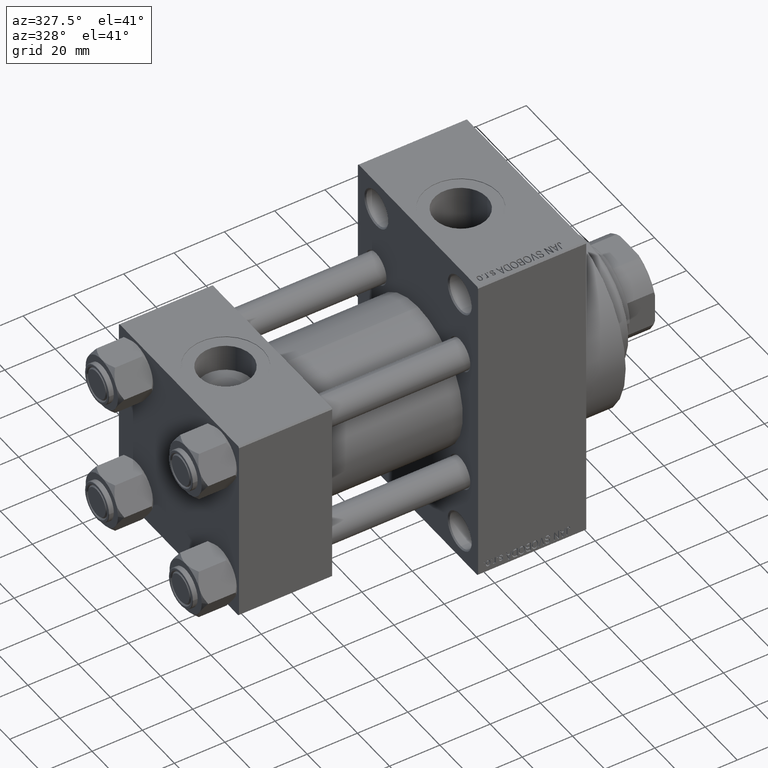
[diagram: clean part render]
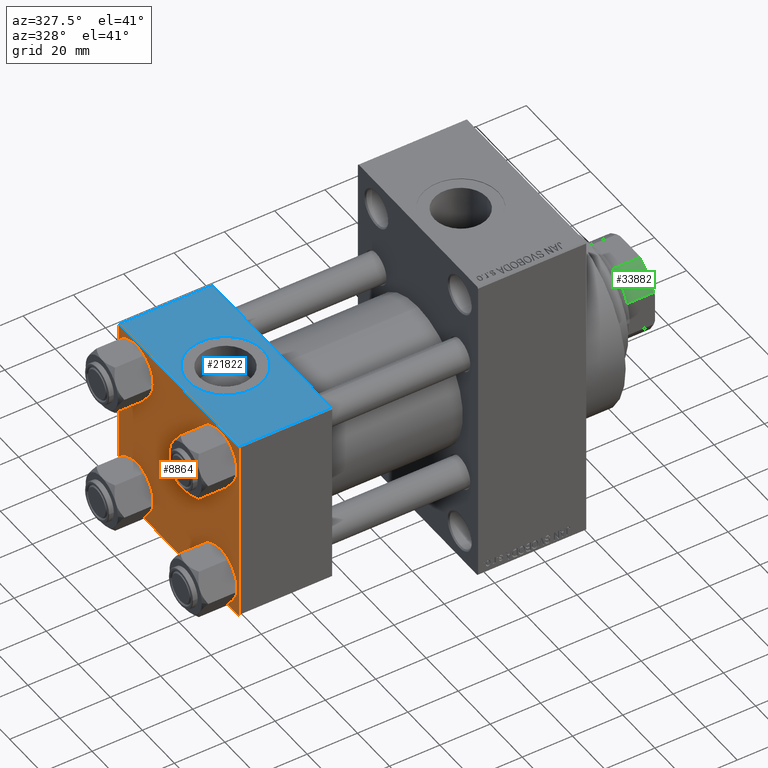
[diagram: same view with three faces highlighted in distinct colors, each labeled with its STEP entity id]
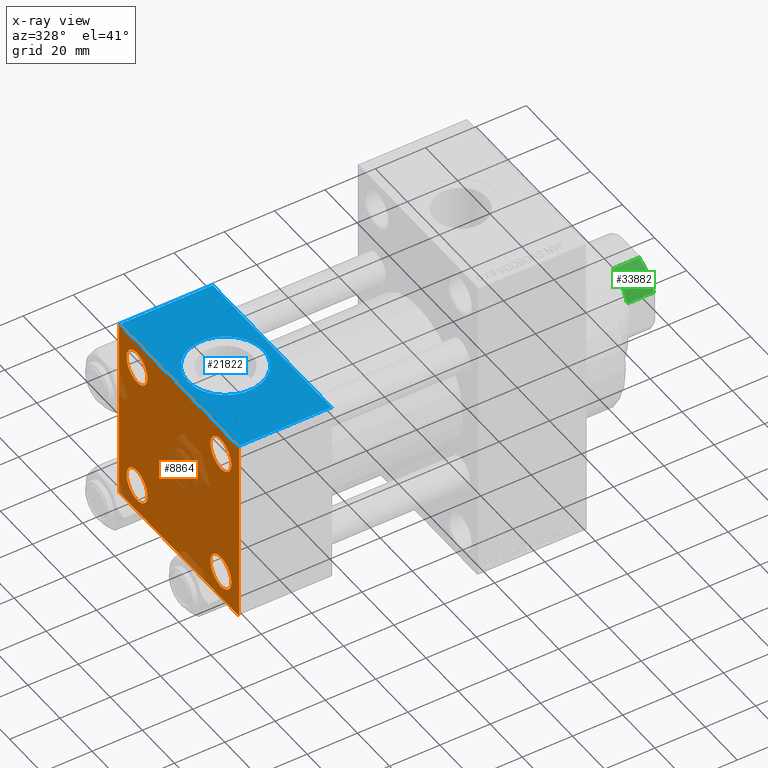
[diagram: x-ray of the same camera — body ghosted, the three highlighted faces saturated]
A machine part, auxiliary view with three faces highlighted in distinct colors.
The next image is the same camera in x-ray (body ghosted, the three faces saturated) — at least one of them is partly hidden behind the body in this view.
Their STEP definitions:

[orange] entity #8864 — the highlighted planar face has unit normal (-1, 0, 0).
#709 = LINE ( 'NONE', #45149, #17360 ) ;
#785 = VERTEX_POINT ( 'NONE', #18199 ) ;
#1484 = CIRCLE ( 'NONE', #5345, 6.500000000000023093 ) ;
#1525 = EDGE_CURVE ( 'NONE', #11222, #17447, #709, .T. ) ;
#1837 = DIRECTION ( 'NONE',  ( 1.000000000000000000, -0.000000000000000000, 0.000000000000000000 ) ) ;
#2210 = CARTESIAN_POINT ( 'NONE',  ( 0.000000000000000000, -37.50000000000000711, 36.99999999999999289 ) ) ;
#2714 = CARTESIAN_POINT ( 'NONE',  ( 0.000000000000000000, 0.000000000000000000, 0.000000000000000000 ) ) ;
#2852 = EDGE_LOOP ( 'NONE', ( #30774, #11164 ) ) ;
#3331 = DIRECTION ( 'NONE',  ( 0.000000000000000000, 0.7071067811865474617, -0.7071067811865474617 ) ) ;
#3802 = CARTESIAN_POINT ( 'NONE',  ( 0.000000000000000000, -26.14999999999999147, -32.65000000000002700 ) ) ;
#4477 = DIRECTION ( 'NONE',  ( 1.000000000000000000, -0.000000000000000000, 0.000000000000000000 ) ) ;
#4916 = CIRCLE ( 'NONE', #32488, 6.500000000000015987 ) ;
#5211 = AXIS2_PLACEMENT_3D ( 'NONE', #7226, #43727, #7693 ) ;
#5222 = DIRECTION ( 'NONE',  ( 0.000000000000000000, 0.000000000000000000, 1.000000000000000000 ) ) ;
#5345 = AXIS2_PLACEMENT_3D ( 'NONE', #9900, #24524, #39173 ) ;
#5518 = LINE ( 'NONE', #16098, #5759 ) ;
#5546 = EDGE_CURVE ( 'NONE', #39640, #23417, #9514, .T. ) ;
#5759 = VECTOR ( 'NONE', #41538, 1000.000000000000114 ) ;
#5796 = EDGE_CURVE ( 'NONE', #13969, #39763, #5924, .T. ) ;
#5924 = CIRCLE ( 'NONE', #7449, 6.500000000000023093 ) ;
#6107 = EDGE_LOOP ( 'NONE', ( #44374, #10588 ) ) ;
#6208 = CIRCLE ( 'NONE', #39175, 6.500000000000023093 ) ;
#6320 = PLANE ( 'NONE',  #10585 ) ;
#7017 = CARTESIAN_POINT ( 'NONE',  ( 0.000000000000000000, 37.49999999999999289, -37.50000000000000000 ) ) ;
#7226 = CARTESIAN_POINT ( 'NONE',  ( 0.000000000000000000, -26.14999999999999147, -26.15000000000000924 ) ) ;
#7449 = AXIS2_PLACEMENT_3D ( 'NONE', #42759, #10094, #24963 ) ;
#7569 = EDGE_CURVE ( 'NONE', #34756, #14302, #46590, .T. ) ;
#7611 = EDGE_LOOP ( 'NONE', ( #28040, #29580 ) ) ;
#7679 = EDGE_CURVE ( 'NONE', #16882, #33552, #12279, .T. ) ;
#7693 = DIRECTION ( 'NONE',  ( 0.000000000000000000, 0.000000000000000000, 1.000000000000000000 ) ) ;
#8312 = EDGE_CURVE ( 'NONE', #10881, #26910, #31292, .T. ) ;
#8856 = VECTOR ( 'NONE', #3331, 1000.000000000000114 ) ;
#8864 = ADVANCED_FACE ( 'NONE', ( #32958, #25031, #18086, #17374, #14728 ), #6320, .T. ) ;
#9473 = VECTOR ( 'NONE', #24946, 1000.000000000000000 ) ;
#9514 = LINE ( 'NONE', #24143, #35007 ) ;
#9900 = CARTESIAN_POINT ( 'NONE',  ( 0.000000000000000000, 26.14999999999999858, 26.15000000000000213 ) ) ;
#10094 = DIRECTION ( 'NONE',  ( 1.000000000000000000, -0.000000000000000000, 0.000000000000000000 ) ) ;
#10585 = AXIS2_PLACEMENT_3D ( 'NONE', #2714, #39691, #21431 ) ;
#10588 = ORIENTED_EDGE ( 'NONE', *, *, #18924, .T. ) ;
#10757 = ORIENTED_EDGE ( 'NONE', *, *, #7679, .F. ) ;
#10881 = VERTEX_POINT ( 'NONE', #29624 ) ;
#11051 = EDGE_CURVE ( 'NONE', #31338, #785, #1484, .T. ) ;
#11164 = ORIENTED_EDGE ( 'NONE', *, *, #13367, .T. ) ;
#11222 = VERTEX_POINT ( 'NONE', #19467 ) ;
#11375 = AXIS2_PLACEMENT_3D ( 'NONE', #31516, #46155, #13285 ) ;
#12279 = LINE ( 'NONE', #18984, #25088 ) ;
#13285 = DIRECTION ( 'NONE',  ( 0.000000000000000000, 0.000000000000000000, 1.000000000000000000 ) ) ;
#13367 = EDGE_CURVE ( 'NONE', #26910, #10881, #37603, .T. ) ;
#13969 = VERTEX_POINT ( 'NONE', #18502 ) ;
#14302 = VERTEX_POINT ( 'NONE', #40765 ) ;
#14661 = VERTEX_POINT ( 'NONE', #22806 ) ;
#14728 = FACE_OUTER_BOUND ( 'NONE', #31901, .T. ) ;
#14781 = CARTESIAN_POINT ( 'NONE',  ( 0.000000000000000000, -37.00000000000000711, 37.49999999999999289 ) ) ;
#16098 = CARTESIAN_POINT ( 'NONE',  ( -0.000000000000000000, -37.25000000000000000, 37.25000000000000000 ) ) ;
#16504 = CARTESIAN_POINT ( 'NONE',  ( 0.000000000000000000, 26.14999999999999858, 26.15000000000000213 ) ) ;
#16862 = DIRECTION ( 'NONE',  ( 0.000000000000000000, 0.000000000000000000, -1.000000000000000000 ) ) ;
#16882 = VERTEX_POINT ( 'NONE', #2210 ) ;
#17179 = VECTOR ( 'NONE', #16862, 1000.000000000000000 ) ;
#17360 = VECTOR ( 'NONE', #34563, 1000.000000000000000 ) ;
#17374 = FACE_BOUND ( 'NONE', #6107, .T. ) ;
#17447 = VERTEX_POINT ( 'NONE', #14781 ) ;
#18065 = ORIENTED_EDGE ( 'NONE', *, *, #24597, .T. ) ;
#18086 = FACE_BOUND ( 'NONE', #2852, .T. ) ;
#18199 = CARTESIAN_POINT ( 'NONE',  ( 0.000000000000000000, 26.14999999999999858, 19.64999999999998437 ) ) ;
#18502 = CARTESIAN_POINT ( 'NONE',  ( 0.000000000000000000, -26.14999999999999147, 19.64999999999999147 ) ) ;
#18924 = EDGE_CURVE ( 'NONE', #785, #31338, #6208, .T. ) ;
#18962 = CARTESIAN_POINT ( 'NONE',  ( 0.000000000000000000, 26.14999999999999858, 32.65000000000002700 ) ) ;
#18984 = CARTESIAN_POINT ( 'NONE',  ( 0.000000000000000000, -37.50000000000000711, 37.49999999999999289 ) ) ;
#19467 = CARTESIAN_POINT ( 'NONE',  ( 0.000000000000000000, 36.99999999999999289, 37.50000000000000000 ) ) ;
#19981 = LINE ( 'NONE', #42545, #17179 ) ;
#20809 = EDGE_LOOP ( 'NONE', ( #30312, #21731 ) ) ;
#21431 = DIRECTION ( 'NONE',  ( -0.000000000000000000, 0.000000000000000000, 1.000000000000000000 ) ) ;
#21654 = ORIENTED_EDGE ( 'NONE', *, *, #44254, .T. ) ;
#21731 = ORIENTED_EDGE ( 'NONE', *, *, #7569, .T. ) ;
#22471 = CARTESIAN_POINT ( 'NONE',  ( 0.000000000000000000, -26.14999999999999147, -26.15000000000000924 ) ) ;
#22806 = CARTESIAN_POINT ( 'NONE',  ( 0.000000000000000000, -37.00000000000002132, -37.50000000000000711 ) ) ;
#23417 = VERTEX_POINT ( 'NONE', #25768 ) ;
#24143 = CARTESIAN_POINT ( 'NONE',  ( 0.000000000000000000, 37.24999999999998579, -37.24999999999998579 ) ) ;
#24524 = DIRECTION ( 'NONE',  ( 1.000000000000000000, -0.000000000000000000, 0.000000000000000000 ) ) ;
#24597 = EDGE_CURVE ( 'NONE', #14661, #33552, #24707, .T. ) ;
#24707 = LINE ( 'NONE', #25184, #9473 ) ;
#24942 = LINE ( 'NONE', #36688, #8856 ) ;
#24946 = DIRECTION ( 'NONE',  ( 0.000000000000000000, -0.7071067811865524577, 0.7071067811865426878 ) ) ;
#24963 = DIRECTION ( 'NONE',  ( 0.000000000000000000, 0.000000000000000000, 1.000000000000000000 ) ) ;
#25031 = FACE_BOUND ( 'NONE', #20809, .T. ) ;
#25088 = VECTOR ( 'NONE', #45396, 1000.000000000000000 ) ;
#25111 = EDGE_CURVE ( 'NONE', #14302, #34756, #4916, .T. ) ;
#25184 = CARTESIAN_POINT ( 'NONE',  ( 0.000000000000000000, -37.24999999999975842, -37.25000000000027001 ) ) ;
#25768 = CARTESIAN_POINT ( 'NONE',  ( 0.000000000000000000, 36.99999999999997868, -37.50000000000000000 ) ) ;
#26328 = EDGE_CURVE ( 'NONE', #40887, #39640, #19981, .T. ) ;
#26539 = CARTESIAN_POINT ( 'NONE',  ( 0.000000000000000000, 26.14999999999999858, -32.65000000000001990 ) ) ;
#26910 = VERTEX_POINT ( 'NONE', #26539 ) ;
#27978 = DIRECTION ( 'NONE',  ( -0.000000000000000000, -0.7071067811865474617, -0.7071067811865474617 ) ) ;
#28040 = ORIENTED_EDGE ( 'NONE', *, *, #45441, .T. ) ;
#28807 = AXIS2_PLACEMENT_3D ( 'NONE', #34589, #38900, #35051 ) ;
#28867 = LINE ( 'NONE', #7017, #40910 ) ;
#29580 = ORIENTED_EDGE ( 'NONE', *, *, #5796, .T. ) ;
#29624 = CARTESIAN_POINT ( 'NONE',  ( 0.000000000000000000, 26.14999999999999858, -19.64999999999998792 ) ) ;
#30312 = ORIENTED_EDGE ( 'NONE', *, *, #25111, .T. ) ;
#30774 = ORIENTED_EDGE ( 'NONE', *, *, #8312, .T. ) ;
#31292 = CIRCLE ( 'NONE', #11375, 6.500000000000015987 ) ;
#31338 = VERTEX_POINT ( 'NONE', #18962 ) ;
#31356 = ORIENTED_EDGE ( 'NONE', *, *, #1525, .F. ) ;
#31516 = CARTESIAN_POINT ( 'NONE',  ( 0.000000000000000000, 26.14999999999999858, -26.15000000000000213 ) ) ;
#31901 = EDGE_LOOP ( 'NONE', ( #33084, #46869, #38374, #18065, #10757, #21654, #31356, #37152 ) ) ;
#32488 = AXIS2_PLACEMENT_3D ( 'NONE', #22471, #4477, #37358 ) ;
#32958 = FACE_BOUND ( 'NONE', #7611, .T. ) ;
#33084 = ORIENTED_EDGE ( 'NONE', *, *, #26328, .T. ) ;
#33552 = VERTEX_POINT ( 'NONE', #34339 ) ;
#34339 = CARTESIAN_POINT ( 'NONE',  ( 0.000000000000000000, -37.50000000000000000, -37.00000000000003553 ) ) ;
#34563 = DIRECTION ( 'NONE',  ( 0.000000000000000000, -1.000000000000000000, -9.251858538542971581E-17 ) ) ;
#34589 = CARTESIAN_POINT ( 'NONE',  ( 0.000000000000000000, -26.14999999999999147, 26.15000000000000924 ) ) ;
#34756 = VERTEX_POINT ( 'NONE', #3802 ) ;
#35007 = VECTOR ( 'NONE', #27978, 1000.000000000000114 ) ;
#35051 = DIRECTION ( 'NONE',  ( 0.000000000000000000, 0.000000000000000000, 1.000000000000000000 ) ) ;
#36614 = CARTESIAN_POINT ( 'NONE',  ( 0.000000000000000000, 26.14999999999999858, -26.15000000000000213 ) ) ;
#36628 = EDGE_CURVE ( 'NONE', #23417, #14661, #28867, .T. ) ;
#36688 = CARTESIAN_POINT ( 'NONE',  ( 0.000000000000000000, 37.24999999999999289, 37.24999999999999289 ) ) ;
#37152 = ORIENTED_EDGE ( 'NONE', *, *, #40856, .T. ) ;
#37358 = DIRECTION ( 'NONE',  ( 0.000000000000000000, 0.000000000000000000, 1.000000000000000000 ) ) ;
#37603 = CIRCLE ( 'NONE', #39908, 6.500000000000015987 ) ;
#38138 = CARTESIAN_POINT ( 'NONE',  ( 0.000000000000000000, 37.49999999999999289, 37.00000000000000000 ) ) ;
#38374 = ORIENTED_EDGE ( 'NONE', *, *, #36628, .T. ) ;
#38652 = CARTESIAN_POINT ( 'NONE',  ( 0.000000000000000000, -26.14999999999999147, 32.65000000000003411 ) ) ;
#38900 = DIRECTION ( 'NONE',  ( 1.000000000000000000, -0.000000000000000000, 0.000000000000000000 ) ) ;
#39173 = DIRECTION ( 'NONE',  ( 0.000000000000000000, 0.000000000000000000, 1.000000000000000000 ) ) ;
#39175 = AXIS2_PLACEMENT_3D ( 'NONE', #16504, #1837, #5222 ) ;
#39427 = DIRECTION ( 'NONE',  ( 0.000000000000000000, -1.000000000000000000, -9.251858538542972814E-17 ) ) ;
#39640 = VERTEX_POINT ( 'NONE', #41558 ) ;
#39691 = DIRECTION ( 'NONE',  ( -1.000000000000000000, 0.000000000000000000, -0.000000000000000000 ) ) ;
#39763 = VERTEX_POINT ( 'NONE', #38652 ) ;
#39908 = AXIS2_PLACEMENT_3D ( 'NONE', #36614, #44074, #40468 ) ;
#40287 = CIRCLE ( 'NONE', #28807, 6.500000000000023093 ) ;
#40468 = DIRECTION ( 'NONE',  ( 0.000000000000000000, 0.000000000000000000, 1.000000000000000000 ) ) ;
#40765 = CARTESIAN_POINT ( 'NONE',  ( 0.000000000000000000, -26.14999999999999147, -19.64999999999999503 ) ) ;
#40856 = EDGE_CURVE ( 'NONE', #11222, #40887, #24942, .T. ) ;
#40887 = VERTEX_POINT ( 'NONE', #38138 ) ;
#40910 = VECTOR ( 'NONE', #39427, 1000.000000000000000 ) ;
#41538 = DIRECTION ( 'NONE',  ( -0.000000000000000000, 0.7071067811865474617, 0.7071067811865474617 ) ) ;
#41558 = CARTESIAN_POINT ( 'NONE',  ( 0.000000000000000000, 37.49999999999999289, -36.99999999999998579 ) ) ;
#42545 = CARTESIAN_POINT ( 'NONE',  ( 0.000000000000000000, 37.49999999999999289, 37.50000000000000000 ) ) ;
#42759 = CARTESIAN_POINT ( 'NONE',  ( 0.000000000000000000, -26.14999999999999147, 26.15000000000000924 ) ) ;
#43727 = DIRECTION ( 'NONE',  ( 1.000000000000000000, -0.000000000000000000, 0.000000000000000000 ) ) ;
#44074 = DIRECTION ( 'NONE',  ( 1.000000000000000000, -0.000000000000000000, 0.000000000000000000 ) ) ;
#44254 = EDGE_CURVE ( 'NONE', #16882, #17447, #5518, .T. ) ;
#44374 = ORIENTED_EDGE ( 'NONE', *, *, #11051, .T. ) ;
#45149 = CARTESIAN_POINT ( 'NONE',  ( 0.000000000000000000, 37.49999999999999289, 37.50000000000000000 ) ) ;
#45396 = DIRECTION ( 'NONE',  ( 0.000000000000000000, 9.251858538542971581E-17, -1.000000000000000000 ) ) ;
#45441 = EDGE_CURVE ( 'NONE', #39763, #13969, #40287, .T. ) ;
#46155 = DIRECTION ( 'NONE',  ( 1.000000000000000000, -0.000000000000000000, 0.000000000000000000 ) ) ;
#46590 = CIRCLE ( 'NONE', #5211, 6.500000000000015987 ) ;
#46869 = ORIENTED_EDGE ( 'NONE', *, *, #5546, .T. ) ;

[blue] entity #21822 — the highlighted planar face has unit normal (0, 0, -1).
#709 = LINE ( 'NONE', #45149, #17360 ) ;
#917 = CIRCLE ( 'NONE', #39263, 15.00000000000000355 ) ;
#1525 = EDGE_CURVE ( 'NONE', #11222, #17447, #709, .T. ) ;
#1905 = LINE ( 'NONE', #9590, #9335 ) ;
#3131 = DIRECTION ( 'NONE',  ( 0.000000000000000000, 0.000000000000000000, 1.000000000000000000 ) ) ;
#5509 = AXIS2_PLACEMENT_3D ( 'NONE', #13265, #3131, #24733 ) ;
#6171 = DIRECTION ( 'NONE',  ( 0.000000000000000000, 0.000000000000000000, 1.000000000000000000 ) ) ;
#6282 = CARTESIAN_POINT ( 'NONE',  ( 37.00000000000000000, 36.99999999999999289, 37.50000000000000000 ) ) ;
#6307 = AXIS2_PLACEMENT_3D ( 'NONE', #20723, #7501, #37006 ) ;
#7486 = VERTEX_POINT ( 'NONE', #6282 ) ;
#7501 = DIRECTION ( 'NONE',  ( 0.000000000000000000, 9.251858538542971581E-17, -1.000000000000000000 ) ) ;
#8205 = VERTEX_POINT ( 'NONE', #42796 ) ;
#9335 = VECTOR ( 'NONE', #38638, 1000.000000000000000 ) ;
#9590 = CARTESIAN_POINT ( 'NONE',  ( 37.00000000000000000, 37.49999999999999289, 37.50000000000000000 ) ) ;
#9786 = CARTESIAN_POINT ( 'NONE',  ( 37.00000000000000000, -37.00000000000000711, 37.49999999999999289 ) ) ;
#11222 = VERTEX_POINT ( 'NONE', #19467 ) ;
#11611 = ORIENTED_EDGE ( 'NONE', *, *, #19634, .F. ) ;
#12936 = CARTESIAN_POINT ( 'NONE',  ( 18.50000000000000000, -5.204170427930421283E-15, 37.50000000000000000 ) ) ;
#13265 = CARTESIAN_POINT ( 'NONE',  ( 18.50000000000000000, -5.204170427930421283E-15, 37.50000000000000000 ) ) ;
#13271 = ORIENTED_EDGE ( 'NONE', *, *, #1525, .T. ) ;
#14781 = CARTESIAN_POINT ( 'NONE',  ( 0.000000000000000000, -37.00000000000000711, 37.49999999999999289 ) ) ;
#16907 = PLANE ( 'NONE',  #6307 ) ;
#17360 = VECTOR ( 'NONE', #34563, 1000.000000000000000 ) ;
#17447 = VERTEX_POINT ( 'NONE', #14781 ) ;
#19382 = ORIENTED_EDGE ( 'NONE', *, *, #33147, .F. ) ;
#19467 = CARTESIAN_POINT ( 'NONE',  ( 0.000000000000000000, 36.99999999999999289, 37.50000000000000000 ) ) ;
#19634 = EDGE_CURVE ( 'NONE', #32195, #8205, #43809, .T. ) ;
#20723 = CARTESIAN_POINT ( 'NONE',  ( 37.00000000000000000, 37.49999999999999289, 37.50000000000000000 ) ) ;
#21130 = EDGE_CURVE ( 'NONE', #7486, #11222, #21361, .T. ) ;
#21361 = LINE ( 'NONE', #32653, #33904 ) ;
#21822 = ADVANCED_FACE ( 'NONE', ( #23862, #38510 ), #16907, .F. ) ;
#22767 = CARTESIAN_POINT ( 'NONE',  ( 37.00000000000000000, -37.00000000000000711, 37.49999999999999289 ) ) ;
#23522 = CARTESIAN_POINT ( 'NONE',  ( 3.499999999999997780, -3.367200229209391300E-15, 37.50000000000000000 ) ) ;
#23862 = FACE_BOUND ( 'NONE', #32706, .T. ) ;
#24177 = LINE ( 'NONE', #9786, #30053 ) ;
#24733 = DIRECTION ( 'NONE',  ( 1.000000000000000000, 0.000000000000000000, 0.000000000000000000 ) ) ;
#26753 = ORIENTED_EDGE ( 'NONE', *, *, #33831, .T. ) ;
#27556 = DIRECTION ( 'NONE',  ( 1.000000000000000000, 0.000000000000000000, 0.000000000000000000 ) ) ;
#28314 = EDGE_LOOP ( 'NONE', ( #13271, #26753, #46629, #29693 ) ) ;
#28325 = DIRECTION ( 'NONE',  ( -1.000000000000000000, 0.000000000000000000, 0.000000000000000000 ) ) ;
#29693 = ORIENTED_EDGE ( 'NONE', *, *, #21130, .T. ) ;
#30053 = VECTOR ( 'NONE', #27556, 1000.000000000000000 ) ;
#32161 = EDGE_CURVE ( 'NONE', #7486, #40904, #1905, .T. ) ;
#32195 = VERTEX_POINT ( 'NONE', #23522 ) ;
#32653 = CARTESIAN_POINT ( 'NONE',  ( 0.000000000000000000, 36.99999999999999289, 37.50000000000000000 ) ) ;
#32706 = EDGE_LOOP ( 'NONE', ( #19382, #11611 ) ) ;
#33147 = EDGE_CURVE ( 'NONE', #8205, #32195, #917, .T. ) ;
#33831 = EDGE_CURVE ( 'NONE', #17447, #40904, #24177, .T. ) ;
#33904 = VECTOR ( 'NONE', #28325, 1000.000000000000000 ) ;
#34563 = DIRECTION ( 'NONE',  ( 0.000000000000000000, -1.000000000000000000, -9.251858538542971581E-17 ) ) ;
#37006 = DIRECTION ( 'NONE',  ( 0.000000000000000000, 1.000000000000000000, 9.251858538542971581E-17 ) ) ;
#38125 = DIRECTION ( 'NONE',  ( 1.000000000000000000, 0.000000000000000000, 0.000000000000000000 ) ) ;
#38510 = FACE_OUTER_BOUND ( 'NONE', #28314, .T. ) ;
#38638 = DIRECTION ( 'NONE',  ( 0.000000000000000000, -1.000000000000000000, -9.251858538542971581E-17 ) ) ;
#39263 = AXIS2_PLACEMENT_3D ( 'NONE', #12936, #6171, #38125 ) ;
#40904 = VERTEX_POINT ( 'NONE', #22767 ) ;
#42796 = CARTESIAN_POINT ( 'NONE',  ( 33.50000000000000000, -5.204170427930421283E-15, 37.50000000000000000 ) ) ;
#43809 = CIRCLE ( 'NONE', #5509, 15.00000000000000355 ) ;
#45149 = CARTESIAN_POINT ( 'NONE',  ( 0.000000000000000000, 37.49999999999999289, 37.50000000000000000 ) ) ;
#46629 = ORIENTED_EDGE ( 'NONE', *, *, #32161, .F. ) ;

[green] entity #33882 — the highlighted cylindrical surface (partial cylindrical patch) has radius 17.5 mm, axis along (1, 0, 0).
#2987 = CARTESIAN_POINT ( 'NONE',  ( 7.088723439378915359, -16.00000000000000000, 131.0000000000000284 ) ) ;
#5649 = ORIENTED_EDGE ( 'NONE', *, *, #14898, .T. ) ;
#5947 = FACE_OUTER_BOUND ( 'NONE', #47218, .T. ) ;
#9624 = VERTEX_POINT ( 'NONE', #21738 ) ;
#14776 = LINE ( 'NONE', #17425, #34091 ) ;
#14898 = EDGE_CURVE ( 'NONE', #39379, #9624, #42717, .T. ) ;
#17425 = CARTESIAN_POINT ( 'NONE',  ( 7.088723439378915359, -16.00000000000000000, -0.001000000000001000089 ) ) ;
#17700 = VECTOR ( 'NONE', #31440, 1000.000000000000000 ) ;
#18051 = ORIENTED_EDGE ( 'NONE', *, *, #43387, .F. ) ;
#18950 = EDGE_CURVE ( 'NONE', #9624, #27070, #36108, .T. ) ;
#19856 = DIRECTION ( 'NONE',  ( -0.000000000000000000, -0.000000000000000000, -1.000000000000000000 ) ) ;
#20185 = CIRCLE ( 'NONE', #45488, 17.50000000000003908 ) ;
#20873 = CARTESIAN_POINT ( 'NONE',  ( 0.000000000000000000, 0.000000000000000000, 131.0000000000000000 ) ) ;
#21479 = DIRECTION ( 'NONE',  ( -0.000000000000000000, -0.000000000000000000, 1.000000000000000000 ) ) ;
#21738 = CARTESIAN_POINT ( 'NONE',  ( 15.99999999999999645, -7.088723439378925129, 141.5000000000000284 ) ) ;
#24409 = CARTESIAN_POINT ( 'NONE',  ( 0.000000000000000000, 0.000000000000000000, -0.001000000000001000089 ) ) ;
#27070 = VERTEX_POINT ( 'NONE', #42139 ) ;
#27755 = CARTESIAN_POINT ( 'NONE',  ( 0.000000000000000000, 0.000000000000000000, 141.5000000000000284 ) ) ;
#31168 = DIRECTION ( 'NONE',  ( -0.000000000000000000, -0.000000000000000000, 1.000000000000000000 ) ) ;
#31440 = DIRECTION ( 'NONE',  ( -0.000000000000000000, -0.000000000000000000, 1.000000000000000000 ) ) ;
#33882 = ADVANCED_FACE ( 'NONE', ( #5947 ), #46040, .T. ) ;
#34091 = VECTOR ( 'NONE', #21479, 1000.000000000000000 ) ;
#34797 = CARTESIAN_POINT ( 'NONE',  ( 15.99999999999999645, -7.088723439378925129, -0.001000000000001000089 ) ) ;
#35438 = EDGE_CURVE ( 'NONE', #36341, #39379, #20185, .T. ) ;
#35509 = DIRECTION ( 'NONE',  ( 0.000000000000000000, 0.000000000000000000, 1.000000000000000000 ) ) ;
#35979 = DIRECTION ( 'NONE',  ( 1.000000000000000000, 0.000000000000000000, 0.000000000000000000 ) ) ;
#36108 = CIRCLE ( 'NONE', #42279, 17.50000000000000000 ) ;
#36341 = VERTEX_POINT ( 'NONE', #2987 ) ;
#37759 = CARTESIAN_POINT ( 'NONE',  ( 15.99999999999999645, -7.088723439378925129, 131.0000000000000284 ) ) ;
#39379 = VERTEX_POINT ( 'NONE', #37759 ) ;
#40444 = ORIENTED_EDGE ( 'NONE', *, *, #35438, .T. ) ;
#42139 = CARTESIAN_POINT ( 'NONE',  ( 7.088723439378915359, -16.00000000000000000, 141.5000000000000284 ) ) ;
#42206 = DIRECTION ( 'NONE',  ( 1.000000000000000000, 0.000000000000000000, 0.000000000000000000 ) ) ;
#42279 = AXIS2_PLACEMENT_3D ( 'NONE', #27755, #19856, #46243 ) ;
#42336 = AXIS2_PLACEMENT_3D ( 'NONE', #24409, #31168, #42206 ) ;
#42717 = LINE ( 'NONE', #34797, #17700 ) ;
#43387 = EDGE_CURVE ( 'NONE', #36341, #27070, #14776, .T. ) ;
#45488 = AXIS2_PLACEMENT_3D ( 'NONE', #20873, #35509, #35979 ) ;
#46040 = CYLINDRICAL_SURFACE ( 'NONE', #42336, 17.50000000000000000 ) ;
#46243 = DIRECTION ( 'NONE',  ( 1.000000000000000000, 0.000000000000000000, 0.000000000000000000 ) ) ;
#47141 = ORIENTED_EDGE ( 'NONE', *, *, #18950, .T. ) ;
#47218 = EDGE_LOOP ( 'NONE', ( #5649, #47141, #18051, #40444 ) ) ;